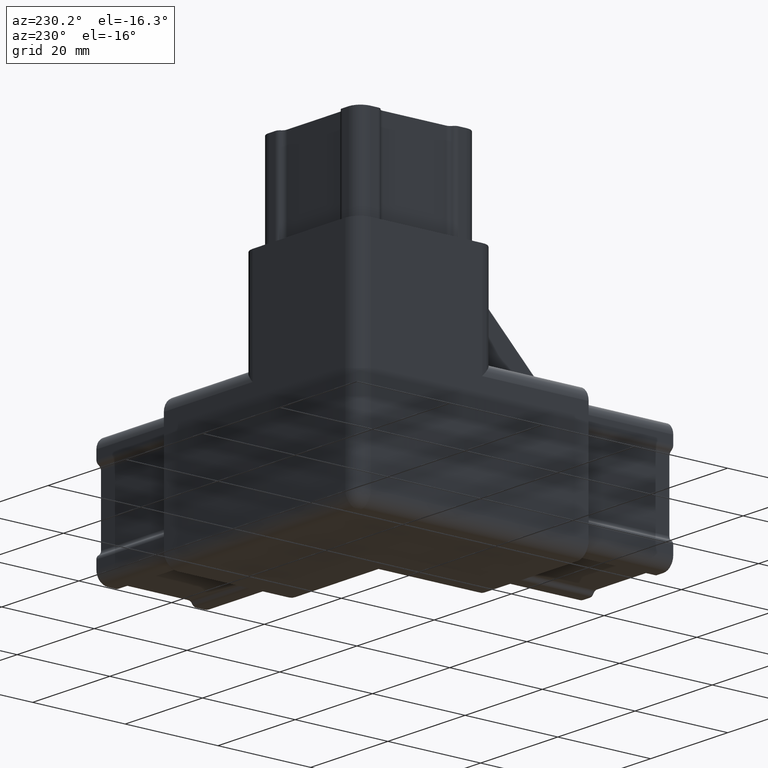
[diagram: clean part render]
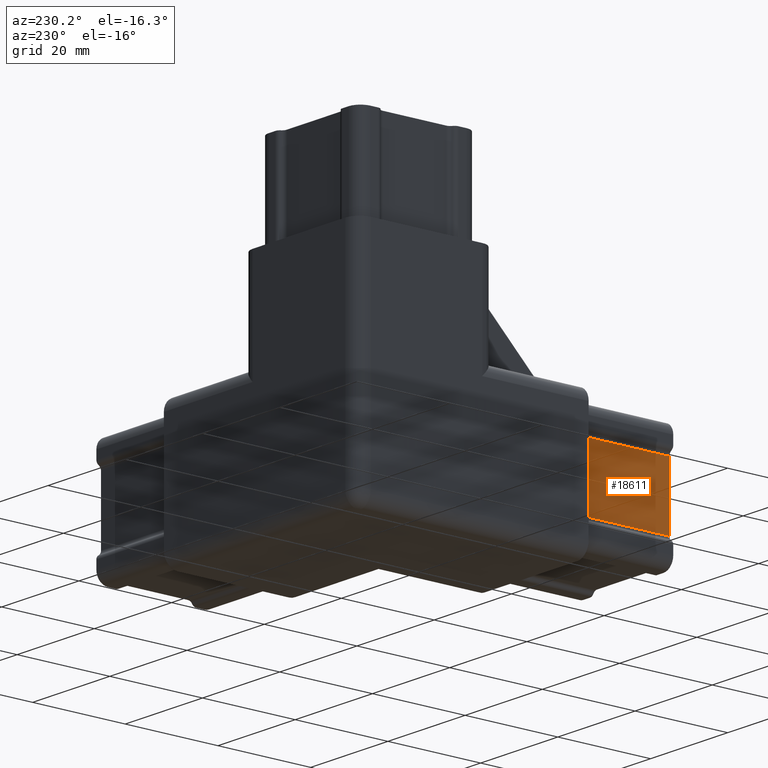
[diagram: same view with one face highlighted and labeled with its STEP entity id]
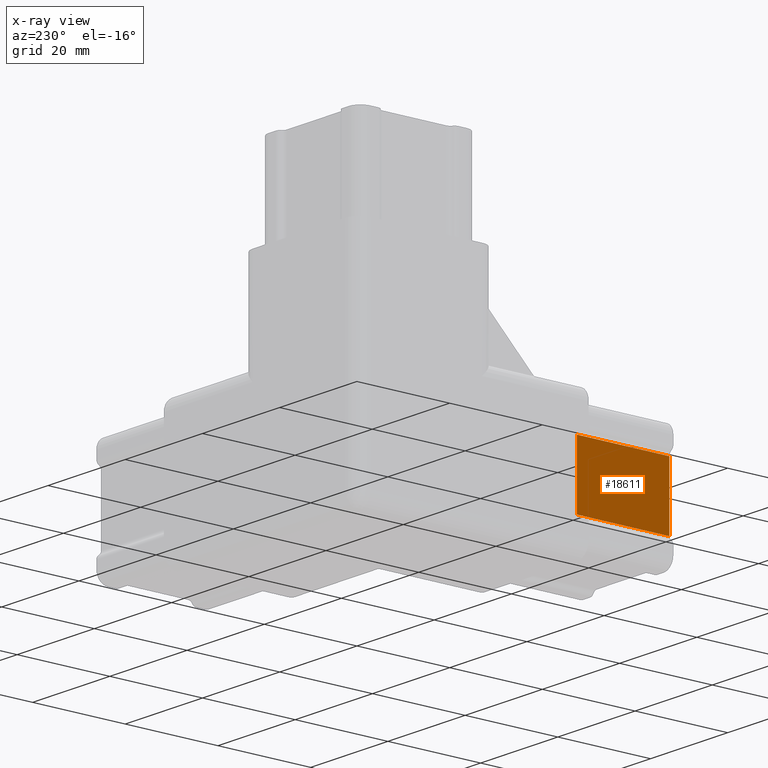
[diagram: x-ray of the same camera — body ghosted, the highlighted face saturated]
A machine part, auxiliary view. The second image highlights one B-rep face of the part: STEP entity #18611.
The next image is the same camera in x-ray: the body ghosted, the highlighted face saturated — about 0% of this face is hidden behind the body in this view.
In plain terms, the highlighted planar face has unit normal (-1, 0, 0).
Its self-contained STEP definition (entity closure, byte-faithful):
#372 = VECTOR ( 'NONE', #13399, 1000.000000000000000 ) ;
#1015 = CARTESIAN_POINT ( 'NONE',  ( 3.099999999999998800, -19.99999999999999600, -13.56666666666662400 ) ) ;
#1538 = DIRECTION ( 'NONE',  ( 0.0000000000000000000, 2.195852501236465000E-016, -1.000000000000000000 ) ) ;
#3306 = VERTEX_POINT ( 'NONE', #9115 ) ;
#4125 = VECTOR ( 'NONE', #11743, 1000.000000000000000 ) ;
#4139 = DIRECTION ( 'NONE',  ( 0.0000000000000000000, 0.0000000000000000000, 1.000000000000000000 ) ) ;
#4222 = LINE ( 'NONE', #1015, #15340 ) ;
#4806 = ORIENTED_EDGE ( 'NONE', *, *, #17750, .F. ) ;
#7177 = CARTESIAN_POINT ( 'NONE',  ( 3.099999999999998800, -19.99999999999999600, -13.56666666666662400 ) ) ;
#7793 = EDGE_CURVE ( 'NONE', #3306, #18141, #13075, .T. ) ;
#7976 = CARTESIAN_POINT ( 'NONE',  ( 3.099999999999998800, 0.0000000000000000000, 1.233333333333377400 ) ) ;
#8115 = EDGE_CURVE ( 'NONE', #12389, #3306, #17513, .T. ) ;
#8544 = PLANE ( 'NONE',  #19154 ) ;
#9015 = VECTOR ( 'NONE', #1538, 1000.000000000000000 ) ;
#9115 = CARTESIAN_POINT ( 'NONE',  ( 3.099999999999998800, 2.195852501236465300E-016, 0.2333333333333772500 ) ) ;
#9478 = CARTESIAN_POINT ( 'NONE',  ( 3.099999999999998800, 3.249861701829968400E-015, -13.56666666666662200 ) ) ;
#10299 = CARTESIAN_POINT ( 'NONE',  ( 3.099999999999998800, 1.224646799147353200E-016, 0.2333333333333772500 ) ) ;
#11663 = DIRECTION ( 'NONE',  ( 0.0000000000000000000, -1.000000000000000000, -1.224646799147353200E-016 ) ) ;
#11743 = DIRECTION ( 'NONE',  ( 0.0000000000000000000, 2.195852501236465000E-016, -1.000000000000000000 ) ) ;
#11897 = ORIENTED_EDGE ( 'NONE', *, *, #7793, .T. ) ;
#12389 = VERTEX_POINT ( 'NONE', #19132 ) ;
#12708 = EDGE_CURVE ( 'NONE', #18141, #13086, #4222, .T. ) ;
#13075 = LINE ( 'NONE', #7976, #9015 ) ;
#13086 = VERTEX_POINT ( 'NONE', #7177 ) ;
#13204 = CARTESIAN_POINT ( 'NONE',  ( 3.099999999999998800, 0.0000000000000000000, 1.233333333333377400 ) ) ;
#13222 = CARTESIAN_POINT ( 'NONE',  ( 3.099999999999998800, -20.00000000000000000, 1.233333333333374900 ) ) ;
#13399 = DIRECTION ( 'NONE',  ( -0.0000000000000000000, 1.000000000000000000, 1.224646799147353200E-016 ) ) ;
#13750 = ORIENTED_EDGE ( 'NONE', *, *, #12708, .T. ) ;
#14387 = ORIENTED_EDGE ( 'NONE', *, *, #8115, .T. ) ;
#14529 = FACE_OUTER_BOUND ( 'NONE', #17050, .T. ) ;
#14774 = LINE ( 'NONE', #13222, #4125 ) ;
#15340 = VECTOR ( 'NONE', #11663, 1000.000000000000000 ) ;
#17050 = EDGE_LOOP ( 'NONE', ( #4806, #14387, #11897, #13750 ) ) ;
#17513 = LINE ( 'NONE', #10299, #372 ) ;
#17750 = EDGE_CURVE ( 'NONE', #12389, #13086, #14774, .T. ) ;
#17793 = DIRECTION ( 'NONE',  ( -1.000000000000000000, 0.0000000000000000000, 0.0000000000000000000 ) ) ;
#18141 = VERTEX_POINT ( 'NONE', #9478 ) ;
#18611 = ADVANCED_FACE ( 'NONE', ( #14529 ), #8544, .T. ) ;
#19132 = CARTESIAN_POINT ( 'NONE',  ( 3.099999999999998800, -20.00000000000000000, 0.2333333333333748600 ) ) ;
#19154 = AXIS2_PLACEMENT_3D ( 'NONE', #13204, #17793, #4139 ) ;